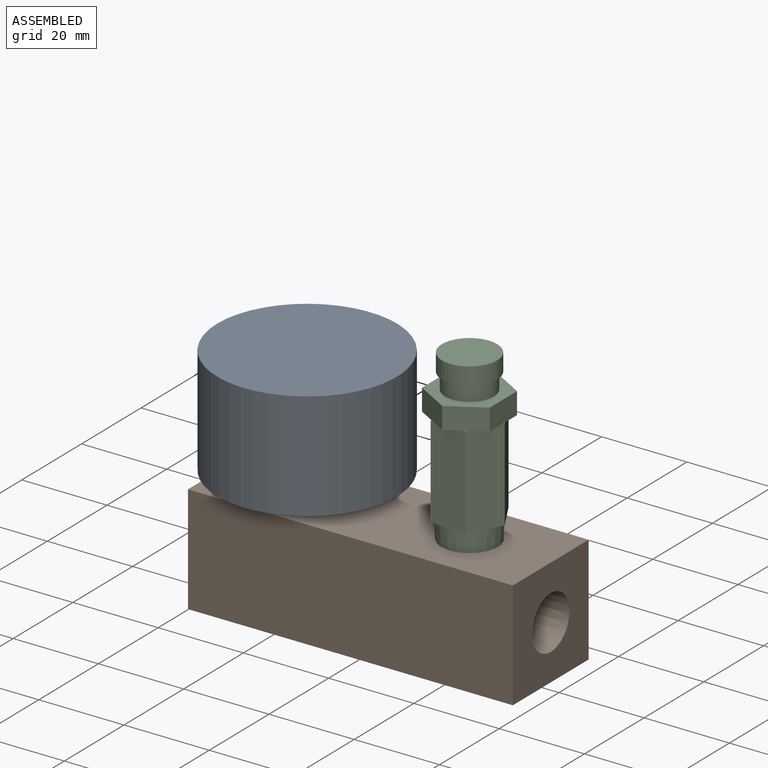
[diagram: assembled view]
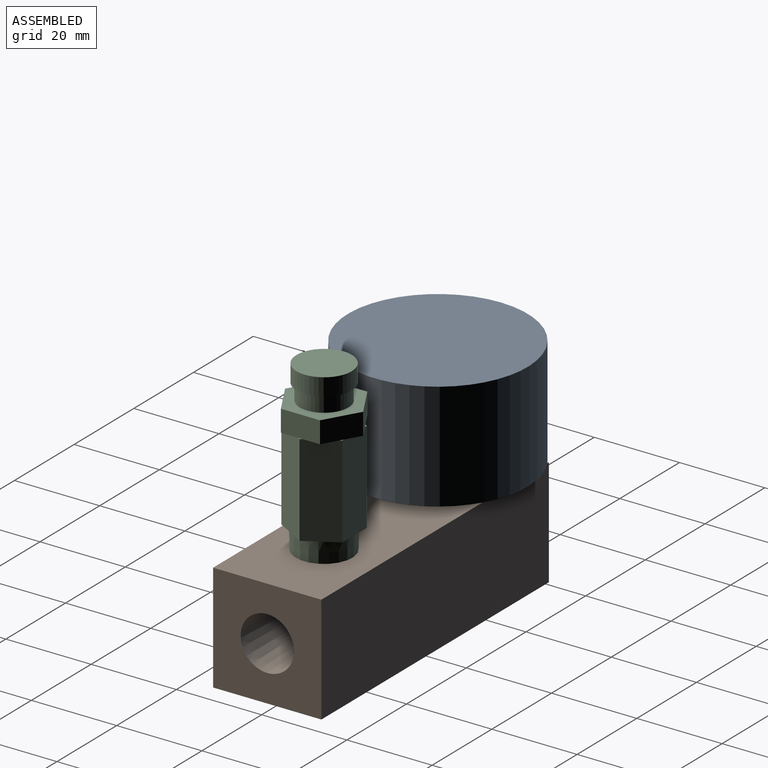
[diagram: assembled view, second angle]
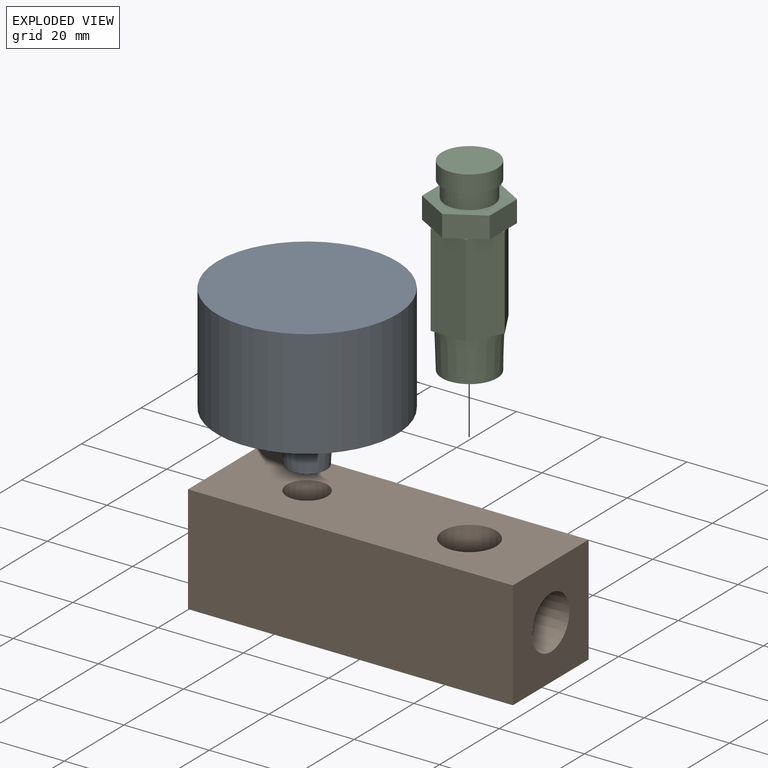
[diagram: exploded view]
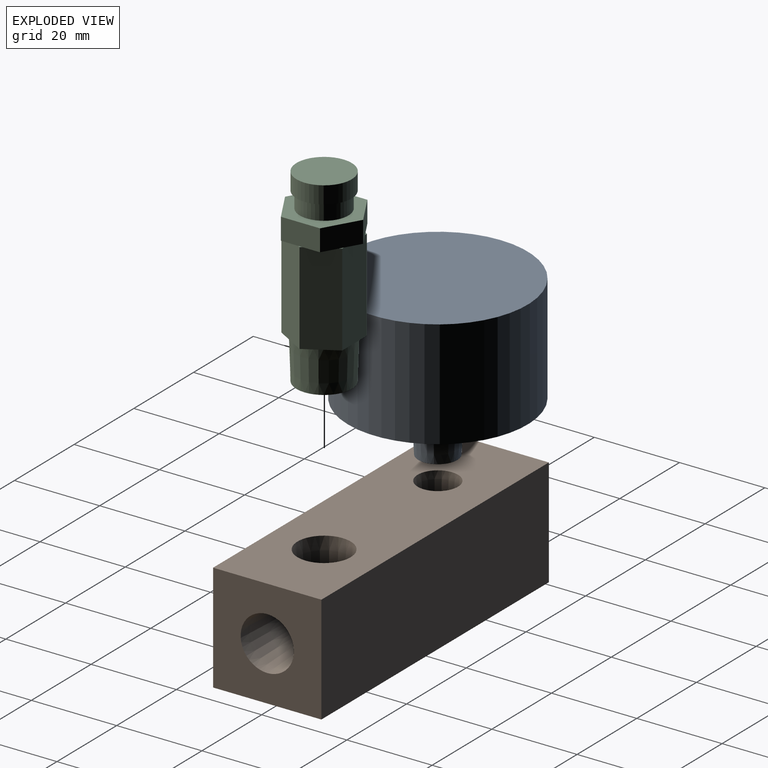
[diagram: exploded view, second angle]
ASSEMBLY  parts=3 mates=2
PART A: 10 faces, bbox 42.2x42.2x37.3 mm
  f0: plane 42.16x42.16mm, normal (0,0,-1), area 1280.3mm2, adj f1,f4,f5,f6,f7
  f1: cylinder r=21.08mm len=42.16mm, axis (0,0,-1), area 3364.5mm2, adj f0,f2
  f2: plane 42.16x42.16mm, normal (0,0,1), area 1396.3mm2, adj f1
  f3: plane 10.77x10.77mm, normal (0,0,-1), area 34.9mm2, adj f4,f5,f6,f7,f9
  f4: plane 10.77x3.81mm, normal (0,1,0), area 41mm2, adj f0,f3,f5,f6
  f5: plane 10.77x3.81mm, normal (1,0,0), area 41mm2, adj f0,f3,f4,f7
  f6: plane 10.77x3.81mm, normal (-1,0,0), area 41mm2, adj f0,f3,f4,f7
  f7: plane 10.77x3.81mm, normal (0,-1,0), area 41mm2, adj f0,f3,f5,f6
  f8: plane 9.14x9.14mm, normal (0,0,-1), area 65.7mm2, adj f9
  f9: cone r=4.57mm half-angle=3.6deg, axis (0,0,1), area 247mm2, adj f3,f8
PART B: 19 faces, bbox 76.2x25.4x25.4 mm
  f0: cylinder r=5.56mm len=27.1mm, axis (1,0,0), area 754.9mm2, adj f1,f9,f11,f15,f16,f18
  f1: cone r=0mm half-angle=59deg, axis (1,0,0), area 22.6mm2, adj f0,f2,f14,f17
  f2: cylinder r=4.31mm len=30.32mm, axis (-1,0,0), area 692.9mm2, adj f1,f10,f12,f14,f15,f16,f17,f18
  f3: plane 76.2x25.4mm, normal (0,1,0), area 1935.5mm2, adj f4,f6,f7,f8
  f4: plane 76.2x25.4mm, normal (0,0,1), area 1742.3mm2, adj f3,f5,f7,f8,f11,f13
  f5: plane 76.2x25.4mm, normal (0,-1,0), area 1935.5mm2, adj f4,f6,f7,f8
  f6: plane 76.2x25.4mm, normal (0,0,-1), area 1813mm2, adj f3,f5,f7,f8,f16
  f7: plane 25.4x25.4mm, normal (1,0,0), area 522.7mm2, adj f3,f4,f5,f6,f9
  f8: plane 25.4x25.4mm, normal (-1,0,0), area 574.4mm2, adj f3,f4,f5,f6,f10
  f9: cone r=5.45mm half-angle=3.6deg, axis (1,0,0), area 408.6mm2, adj f0,f7
  f10: cone r=4.74mm half-angle=3.6deg, axis (-1,0,0), area 200.3mm2, adj f2,f8
  f11: cone r=6.24mm half-angle=3.6deg, axis (0,0,1), area 342.8mm2, adj f0,f4
  f12: cylinder r=4.31mm len=8.61mm, axis (0,0,1), area 79.2mm2, adj f2,f13
  f13: cone r=4.74mm half-angle=3.6deg, axis (0,0,1), area 200.3mm2, adj f4,f12
  f14: plane 3.51x1.25mm, normal (0,0,-1), area 2.5mm2, adj f1,f2,f18
  f15: cylinder r=5.56mm len=5.6mm, axis (0,0,1), area 8.2mm2, adj f0,f2,f16,f17
  f16: cone r=6.24mm half-angle=3.6deg, axis (0,0,-1), area 357.8mm2, adj f0,f2,f6,f15,f18
  f17: plane 3.51x1.25mm, normal (0,0,-1), area 2.5mm2, adj f1,f2,f15
  f18: cylinder r=5.56mm len=5.6mm, axis (0,0,1), area 8.2mm2, adj f0,f2,f14,f16
PART C: 32 faces, bbox 16.5x18.3x44.5 mm
  f0: plane 0.93x0.54mm, normal (0,0,1), area 0.2mm2, adj f11,f12,f21
  f1: plane 0.93x0.54mm, normal (0,0,1), area 0.2mm2, adj f10,f11,f26
  f2: plane 1.08x0.31mm, normal (0,0,1), area 0.2mm2, adj f9,f10,f25
  f3: plane 0.93x0.54mm, normal (0,0,1), area 0.2mm2, adj f8,f9,f24
  f4: plane 0.93x0.54mm, normal (0,0,1), area 0.2mm2, adj f7,f8,f23
  f5: plane 12.95x12.95mm, normal (0,0,-1), area 131.8mm2, adj f6
  f6: cone r=6.48mm half-angle=1.9deg, axis (0,0,1), area 413.6mm2, adj f5,f14
  f7: plane 21.59x7.14mm, normal (0.87,0.5,0), area 178.1mm2, adj f4,f8,f12,f13,f14,f15
  f8: plane 21.59x8.25mm, normal (0,1,0), area 178.1mm2, adj f3,f4,f7,f9,f14,f16
  f9: plane 21.59x7.14mm, normal (-0.87,0.5,0), area 178.1mm2, adj f2,f3,f8,f10,f14,f17
  f10: plane 21.59x7.14mm, normal (-0.87,-0.5,0), area 178.1mm2, adj f1,f2,f9,f11,f14,f18
  f11: plane 21.59x8.25mm, normal (0,-1,0), area 178.1mm2, adj f0,f1,f10,f12,f14,f19
  f12: plane 21.59x7.14mm, normal (0.87,-0.5,0), area 178.1mm2, adj f0,f7,f11,f13,f14,f20
  f13: plane 1.08x0.31mm, normal (0,0,1), area 0.2mm2, adj f7,f12,f22
  f14: plane 16.5x14.29mm, normal (0,0,-1), area 31.2mm2, adj f6,f7,f8,f9,f10,f11,f12
  f15: plane 6.07x3.5mm, normal (0,0,-1), area 7.1mm2, adj f7,f22,f23
  f16: plane 7x2.02mm, normal (0,0,-1), area 7.1mm2, adj f8,f23,f24
  f17: plane 6.07x3.5mm, normal (0,0,-1), area 7.1mm2, adj f9,f24,f25
  f18: plane 6.07x3.5mm, normal (0,0,-1), area 7.1mm2, adj f10,f25,f26
  f19: plane 7x2.02mm, normal (0,0,-1), area 7.1mm2, adj f11,f21,f26
  f20: plane 6.07x3.5mm, normal (0,0,-1), area 7.1mm2, adj f12,f21,f22
  f21: plane 7.94x5.08mm, normal (0.5,-0.87,0), area 46.6mm2, adj f0,f19,f20,f22,f26,f27
  f22: plane 9.17x5.08mm, normal (1,0,0), area 46.6mm2, adj f13,f15,f20,f21,f23,f27
  f23: plane 7.94x5.08mm, normal (0.5,0.87,0), area 46.6mm2, adj f4,f15,f16,f22,f24,f27
  f24: plane 7.94x5.08mm, normal (-0.5,0.87,0), area 46.6mm2, adj f3,f16,f17,f23,f25,f27
  f25: plane 9.17x5.08mm, normal (-1,0,0), area 46.6mm2, adj f2,f17,f18,f24,f26,f27
  f26: plane 7.94x5.08mm, normal (-0.5,-0.87,0), area 46.6mm2, adj f1,f18,f19,f21,f25,f27
  f27: plane 18.33x15.88mm, normal (0,0,1), area 115.6mm2, adj f21,f22,f23,f24,f25,f26,f28
  f28: cylinder r=5.71mm len=11.43mm, axis (0,0,-1), area 136.8mm2, adj f27,f29
  f29: plane 12.95x12.95mm, normal (0,0,-1), area 29.2mm2, adj f28,f30
  f30: cylinder r=6.48mm len=12.95mm, axis (0,0,-1), area 165.4mm2, adj f29,f31
  f31: plane 12.95x12.95mm, normal (0,0,1), area 131.8mm2, adj f30
PLACE A t=(-19.05,0,13.25)mm
PLACE B at identity fixed
PLACE C t=(19.05,0,15.11)mm
MATE fastened C.f6 <-> B.f11  axis (0,0,1) through (19.05,0,12.7)mm
MATE fastened A.f1 <-> B.f12  axis (0,0,1) through (-19.05,0,9.18)mm
